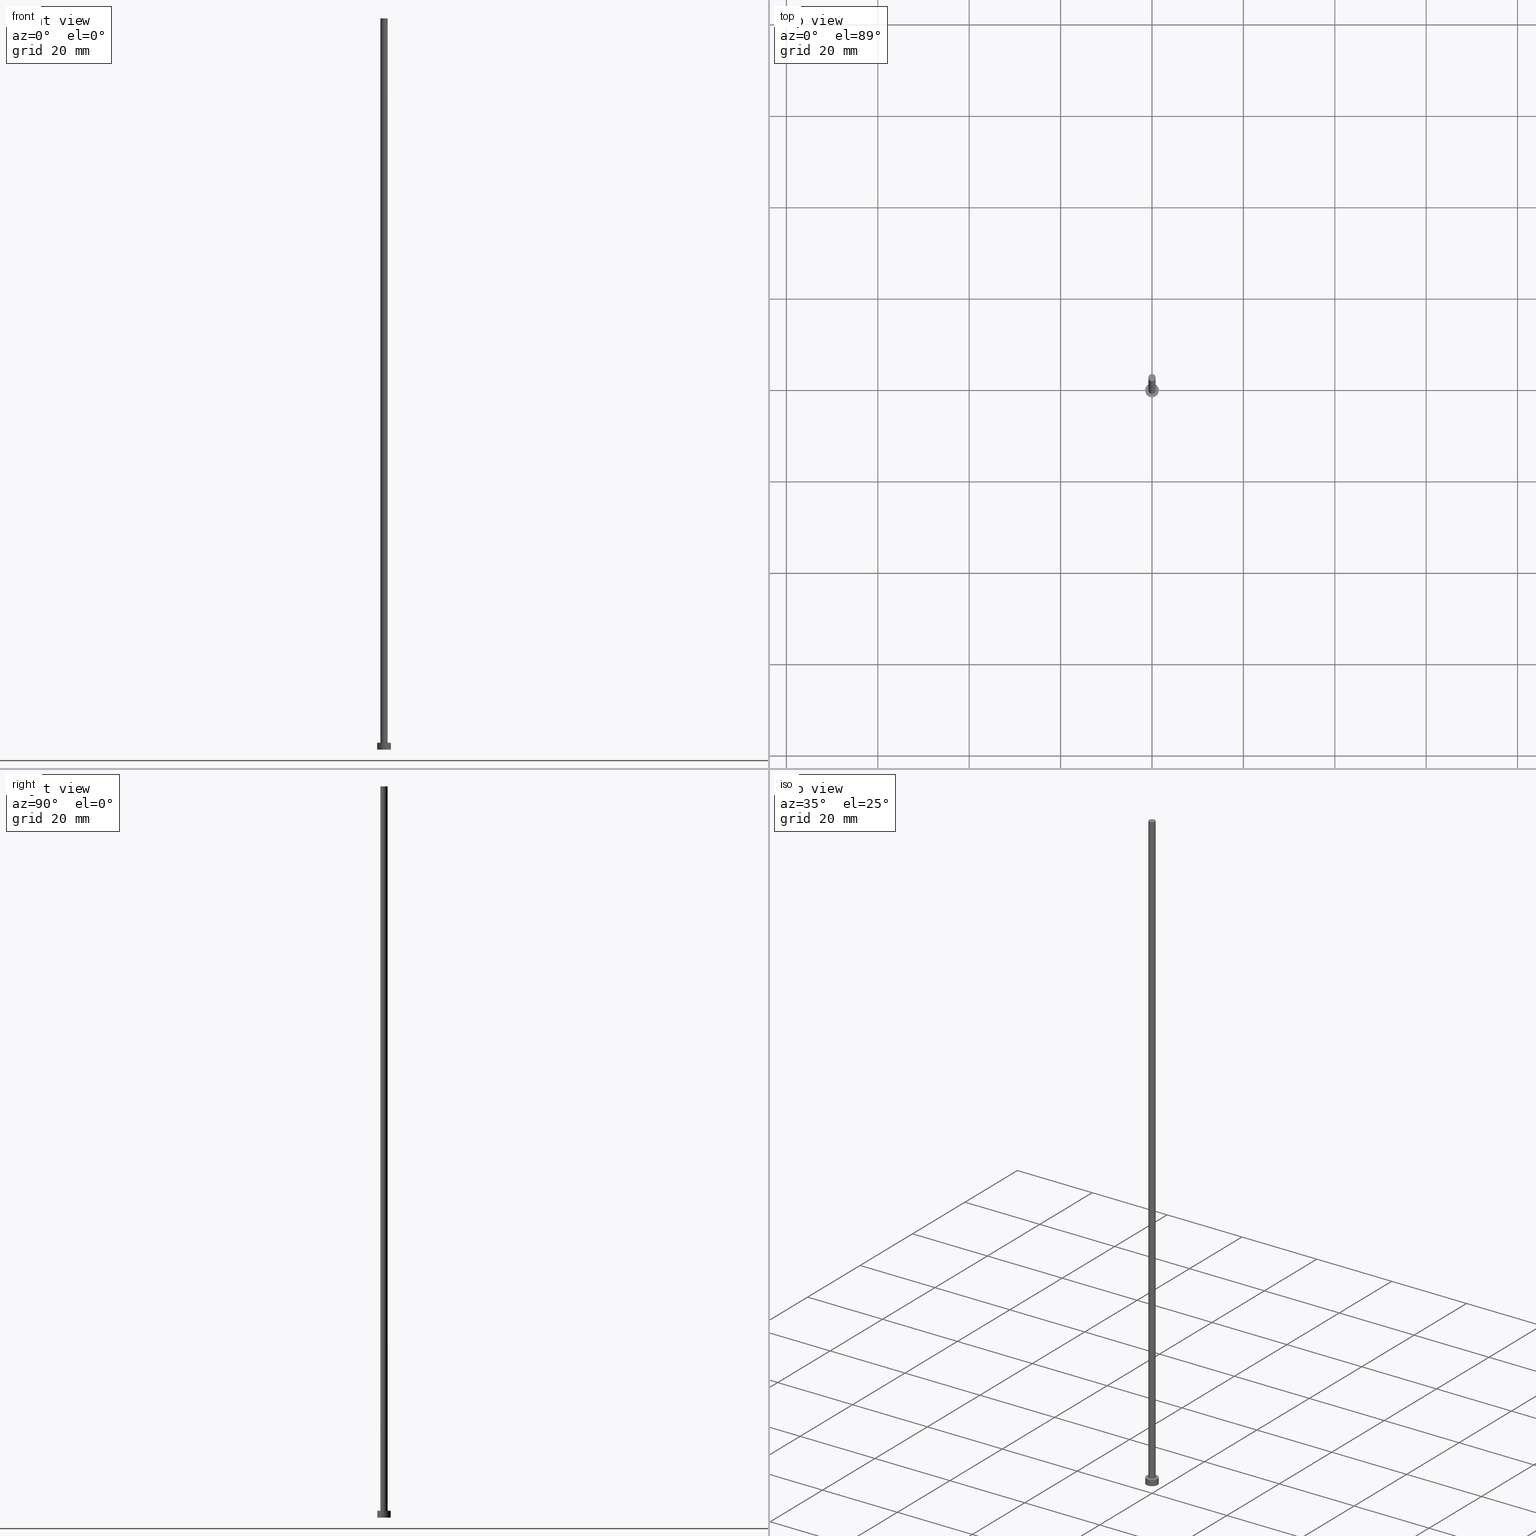
[diagram: canonical four-view strip — front | top / right | iso, engineering-drawing reading convention]
A machine part, canonical four-view strip (front | top / right | iso — engineering-drawing reading convention). The complete STEP part file that produces these views, byte-faithful:
ISO-10303-21;
HEADER;
FILE_DESCRIPTION (( 'STEP AP203' ),
    '1' );
FILE_NAME ('24e6.STEP',
    '2023-02-13T17:17:28',
    ( '' ),
    ( '' ),
    'SwSTEP 2.0',
    'SolidWorks 2019',
    '' );
FILE_SCHEMA (( 'CONFIG_CONTROL_DESIGN' ));
ENDSEC;

DATA;
#1 = CYLINDRICAL_SURFACE ( 'NONE', #44, 0.8000000000000000444 ) ;
#2 = CARTESIAN_POINT ( 'NONE',  ( 0.000000000000000000, 0.000000000000000000, 160.0000000000000000 ) ) ;
#3 = CARTESIAN_POINT ( 'NONE',  ( 0.000000000000000000, 0.000000000000000000, 160.0000000000000000 ) ) ;
#4 = LINE ( 'NONE', #62, #243 ) ;
#5 = CARTESIAN_POINT ( 'NONE',  ( -1.500000000000000222, 0.000000000000000000, 0.000000000000000000 ) ) ;
#6 = COORDINATED_UNIVERSAL_TIME_OFFSET ( 1, 0, .AHEAD. ) ;
#7 = CC_DESIGN_PERSON_AND_ORGANIZATION_ASSIGNMENT ( #240, #221, ( #216 ) ) ;
#8 = VECTOR ( 'NONE', #214, 1000.000000000000000 ) ;
#9 = COORDINATED_UNIVERSAL_TIME_OFFSET ( 1, 0, .AHEAD. ) ;
#10 = VERTEX_POINT ( 'NONE', #236 ) ;
#11 = PERSON_AND_ORGANIZATION_ROLE ( 'design_supplier' ) ;
#12 = EDGE_LOOP ( 'NONE', ( #30, #108 ) ) ;
#13 = DATE_TIME_ROLE ( 'classification_date' ) ;
#14 = EDGE_CURVE ( 'NONE', #74, #196, #222, .T. ) ;
#15 = DIRECTION ( 'NONE',  ( -0.000000000000000000, -0.000000000000000000, -1.000000000000000000 ) ) ;
#16 = CARTESIAN_POINT ( 'NONE',  ( 0.000000000000000000, 0.000000000000000000, 0.000000000000000000 ) ) ;
#17 = DIRECTION ( 'NONE',  ( -0.000000000000000000, -0.000000000000000000, -1.000000000000000000 ) ) ;
#18 = EDGE_LOOP ( 'NONE', ( #192, #255 ) ) ;
#19 = DIRECTION ( 'NONE',  ( -1.000000000000000000, 0.000000000000000000, 0.000000000000000000 ) ) ;
#20 = CC_DESIGN_PERSON_AND_ORGANIZATION_ASSIGNMENT ( #70, #11, ( #27 ) ) ;
#21 =( NAMED_UNIT ( * ) PLANE_ANGLE_UNIT ( ) SI_UNIT ( $, .RADIAN. ) );
#22 = CC_DESIGN_SECURITY_CLASSIFICATION ( #80, ( #27 ) ) ;
#23 = APPLICATION_PROTOCOL_DEFINITION ( 'international standard', 'config_control_design', 1994, #109 ) ;
#24 = CC_DESIGN_DATE_AND_TIME_ASSIGNMENT ( #53, #33, ( #94 ) ) ;
#25 = CARTESIAN_POINT ( 'NONE',  ( -0.8000000000000000444, 0.000000000000000000, 1.500000000000000000 ) ) ;
#26 = APPROVAL_STATUS ( 'not_yet_approved' ) ;
#27 = PRODUCT_DEFINITION_FORMATION_WITH_SPECIFIED_SOURCE ( 'LIBOVOLN�', '', #216, .NOT_KNOWN. ) ;
#28 = DIRECTION ( 'NONE',  ( -0.000000000000000000, -0.000000000000000000, -1.000000000000000000 ) ) ;
#29 = DATE_AND_TIME ( #55, #67 ) ;
#30 = ORIENTED_EDGE ( 'NONE', *, *, #46, .T. ) ;
#31 = COORDINATED_UNIVERSAL_TIME_OFFSET ( 1, 0, .AHEAD. ) ;
#32 = ORIENTED_EDGE ( 'NONE', *, *, #219, .F. ) ;
#33 = DATE_TIME_ROLE ( 'creation_date' ) ;
#34 = DIRECTION ( 'NONE',  ( 1.000000000000000000, 0.000000000000000000, 0.000000000000000000 ) ) ;
#35 = LINE ( 'NONE', #96, #8 ) ;
#36 = EDGE_CURVE ( 'NONE', #74, #154, #35, .T. ) ;
#37 = AXIS2_PLACEMENT_3D ( 'NONE', #121, #202, #198 ) ;
#38 = DIRECTION ( 'NONE',  ( 0.000000000000000000, 0.000000000000000000, 1.000000000000000000 ) ) ;
#39 = CIRCLE ( 'NONE', #102, 1.500000000000000222 ) ;
#40 = DIRECTION ( 'NONE',  ( 1.000000000000000000, 0.000000000000000000, -0.000000000000000000 ) ) ;
#41 = DIRECTION ( 'NONE',  ( 1.000000000000000000, 0.000000000000000000, -0.000000000000000000 ) ) ;
#42 = MANIFOLD_SOLID_BREP ( 'P�idat vysunut�m3', #171 ) ;
#43 = CARTESIAN_POINT ( 'NONE',  ( 0.8000000000000000444, 9.797174393178826150E-17, 1.500000000000000000 ) ) ;
#44 = AXIS2_PLACEMENT_3D ( 'NONE', #2, #60, #140 ) ;
#45 = DIRECTION ( 'NONE',  ( 1.000000000000000000, 0.000000000000000000, 0.000000000000000000 ) ) ;
#46 = EDGE_CURVE ( 'NONE', #56, #10, #133, .T. ) ;
#47 = DIRECTION ( 'NONE',  ( 1.000000000000000000, 0.000000000000000000, 0.000000000000000000 ) ) ;
#48 = FACE_OUTER_BOUND ( 'NONE', #18, .T. ) ;
#49 = AXIS2_PLACEMENT_3D ( 'NONE', #16, #168, #119 ) ;
#50 = CC_DESIGN_APPROVAL ( #54, ( #27 ) ) ;
#51 = COORDINATED_UNIVERSAL_TIME_OFFSET ( 1, 0, .AHEAD. ) ;
#52 = ORIENTED_EDGE ( 'NONE', *, *, #254, .T. ) ;
#53 = DATE_AND_TIME ( #72, #141 ) ;
#54 = APPROVAL ( #233, 'NEUR�EN�' ) ;
#55 = CALENDAR_DATE ( 2023, 13, 2 ) ;
#56 = VERTEX_POINT ( 'NONE', #136 ) ;
#57 = DIRECTION ( 'NONE',  ( 1.000000000000000000, 0.000000000000000000, -0.000000000000000000 ) ) ;
#58 = FACE_OUTER_BOUND ( 'NONE', #71, .T. ) ;
#59 = CC_DESIGN_DATE_AND_TIME_ASSIGNMENT ( #132, #13, ( #80 ) ) ;
#60 = DIRECTION ( 'NONE',  ( -0.000000000000000000, -0.000000000000000000, -1.000000000000000000 ) ) ;
#61 = LOCAL_TIME ( 18, 17, 28.00000000000000000, #31 ) ;
#62 = CARTESIAN_POINT ( 'NONE',  ( -1.500000000000000222, 0.000000000000000000, 1.500000000000000000 ) ) ;
#63 = CARTESIAN_POINT ( 'NONE',  ( 0.000000000000000000, 0.000000000000000000, 1.500000000000000000 ) ) ;
#64 = ORGANIZATION ( 'NEUR�EN�', 'NEUR�EN�', '' ) ;
#65 = CALENDAR_DATE ( 2023, 13, 2 ) ;
#66 = CIRCLE ( 'NONE', #100, 0.8000000000000000444 ) ;
#67 = LOCAL_TIME ( 18, 17, 28.00000000000000000, #51 ) ;
#68 = ORIENTED_EDGE ( 'NONE', *, *, #219, .T. ) ;
#69 = PERSON_AND_ORGANIZATION ( #212, #64 ) ;
#70 = PERSON_AND_ORGANIZATION ( #212, #64 ) ;
#71 = EDGE_LOOP ( 'NONE', ( #113, #178, #52, #87 ) ) ;
#72 = CALENDAR_DATE ( 2023, 13, 2 ) ;
#73 = LOCAL_TIME ( 18, 17, 28.00000000000000000, #6 ) ;
#74 = VERTEX_POINT ( 'NONE', #97 ) ;
#75 = CARTESIAN_POINT ( 'NONE',  ( 0.000000000000000000, 0.000000000000000000, 160.0000000000000000 ) ) ;
#76 = FACE_OUTER_BOUND ( 'NONE', #165, .T. ) ;
#77 = CARTESIAN_POINT ( 'NONE',  ( 0.000000000000000000, 0.000000000000000000, 1.500000000000000000 ) ) ;
#78 = FACE_OUTER_BOUND ( 'NONE', #164, .T. ) ;
#79 = FACE_OUTER_BOUND ( 'NONE', #12, .T. ) ;
#80 = SECURITY_CLASSIFICATION ( '', '', #114 ) ;
#81 = UNCERTAINTY_MEASURE_WITH_UNIT (LENGTH_MEASURE( 1.000000000000000082E-05 ), #174, 'distance_accuracy_value', 'NONE');
#82 = APPROVAL ( #225, 'NEUR�EN�' ) ;
#83 = DIRECTION ( 'NONE',  ( 1.000000000000000000, 0.000000000000000000, 0.000000000000000000 ) ) ;
#84 = DIRECTION ( 'NONE',  ( 0.000000000000000000, 0.000000000000000000, 1.000000000000000000 ) ) ;
#85 = EDGE_LOOP ( 'NONE', ( #156, #208, #131, #95 ) ) ;
#86 = PERSON_AND_ORGANIZATION_ROLE ( 'creator' ) ;
#87 = ORIENTED_EDGE ( 'NONE', *, *, #200, .F. ) ;
#88 = ADVANCED_FACE ( 'NONE', ( #76 ), #1, .T. ) ;
#89 = CALENDAR_DATE ( 2023, 13, 2 ) ;
#90 = ORIENTED_EDGE ( 'NONE', *, *, #237, .F. ) ;
#91 = ADVANCED_FACE ( 'NONE', ( #210, #79 ), #120, .T. ) ;
#92 = VECTOR ( 'NONE', #217, 1000.000000000000000 ) ;
#93 = FACE_OUTER_BOUND ( 'NONE', #158, .T. ) ;
#94 = PRODUCT_DEFINITION ( 'NEZN�M�', '', #27, #239 ) ;
#95 = ORIENTED_EDGE ( 'NONE', *, *, #125, .T. ) ;
#96 = CARTESIAN_POINT ( 'NONE',  ( -0.8000000000000000444, 0.000000000000000000, 160.0000000000000000 ) ) ;
#97 = CARTESIAN_POINT ( 'NONE',  ( -0.8000000000000000444, 0.000000000000000000, 160.0000000000000000 ) ) ;
#98 = FACE_OUTER_BOUND ( 'NONE', #85, .T. ) ;
#99 = CC_DESIGN_PERSON_AND_ORGANIZATION_ASSIGNMENT ( #175, #86, ( #94 ) ) ;
#100 = AXIS2_PLACEMENT_3D ( 'NONE', #63, #143, #103 ) ;
#101 = CARTESIAN_POINT ( 'NONE',  ( 0.000000000000000000, 0.000000000000000000, 0.000000000000000000 ) ) ;
#102 = AXIS2_PLACEMENT_3D ( 'NONE', #101, #191, #83 ) ;
#103 = DIRECTION ( 'NONE',  ( 1.000000000000000000, 0.000000000000000000, 0.000000000000000000 ) ) ;
#104 = ADVANCED_FACE ( 'NONE', ( #58 ), #182, .T. ) ;
#105 = APPROVAL_ROLE ( '' ) ;
#106 = AXIS2_PLACEMENT_3D ( 'NONE', #77, #203, #137 ) ;
#107 = DIRECTION ( 'NONE',  ( 1.000000000000000000, 0.000000000000000000, 0.000000000000000000 ) ) ;
#108 = ORIENTED_EDGE ( 'NONE', *, *, #150, .T. ) ;
#109 = APPLICATION_CONTEXT ( 'configuration controlled 3d designs of mechanical parts and assemblies' ) ;
#110 = COORDINATED_UNIVERSAL_TIME_OFFSET ( 1, 0, .AHEAD. ) ;
#111 = VERTEX_POINT ( 'NONE', #213 ) ;
#112 = AXIS2_PLACEMENT_3D ( 'NONE', #126, #187, #41 ) ;
#113 = ORIENTED_EDGE ( 'NONE', *, *, #150, .F. ) ;
#114 = SECURITY_CLASSIFICATION_LEVEL ( 'unclassified' ) ;
#115 = ORIENTED_EDGE ( 'NONE', *, *, #160, .F. ) ;
#116 = CARTESIAN_POINT ( 'NONE',  ( 0.000000000000000000, 0.000000000000000000, 1.500000000000000000 ) ) ;
#117 = ORIENTED_EDGE ( 'NONE', *, *, #139, .T. ) ;
#118 = APPROVAL ( #26, 'NEUR�EN�' ) ;
#119 = DIRECTION ( 'NONE',  ( 1.000000000000000000, 0.000000000000000000, 0.000000000000000000 ) ) ;
#120 = PLANE ( 'NONE',  #224 ) ;
#121 = CARTESIAN_POINT ( 'NONE',  ( 0.000000000000000000, 0.000000000000000000, 1.500000000000000000 ) ) ;
#122 = CARTESIAN_POINT ( 'NONE',  ( 0.8000000000000000444, 9.797174393178826150E-17, 160.0000000000000000 ) ) ;
#123 = ADVANCED_BREP_SHAPE_REPRESENTATION ( '24e6', ( #42, #146 ), #253 ) ;
#124 = DIRECTION ( 'NONE',  ( 0.000000000000000000, 0.000000000000000000, 1.000000000000000000 ) ) ;
#125 = EDGE_CURVE ( 'NONE', #228, #111, #159, .T. ) ;
#126 = CARTESIAN_POINT ( 'NONE',  ( 0.000000000000000000, 0.000000000000000000, 0.000000000000000000 ) ) ;
#127 = PERSON_AND_ORGANIZATION ( #212, #64 ) ;
#128 = AXIS2_PLACEMENT_3D ( 'NONE', #252, #138, #34 ) ;
#129 = DIRECTION ( 'NONE',  ( 0.000000000000000000, 0.000000000000000000, 1.000000000000000000 ) ) ;
#130 = DATE_AND_TIME ( #65, #61 ) ;
#131 = ORIENTED_EDGE ( 'NONE', *, *, #200, .T. ) ;
#132 = DATE_AND_TIME ( #89, #226 ) ;
#133 = CIRCLE ( 'NONE', #181, 1.500000000000000222 ) ;
#134 = CARTESIAN_POINT ( 'NONE',  ( 0.000000000000000000, 0.000000000000000000, 1.500000000000000000 ) ) ;
#135 = CC_DESIGN_APPROVAL ( #82, ( #80 ) ) ;
#136 = CARTESIAN_POINT ( 'NONE',  ( -1.500000000000000222, 0.000000000000000000, 1.500000000000000000 ) ) ;
#137 = DIRECTION ( 'NONE',  ( -1.000000000000000000, 0.000000000000000000, 0.000000000000000000 ) ) ;
#138 = DIRECTION ( 'NONE',  ( 0.000000000000000000, 0.000000000000000000, 1.000000000000000000 ) ) ;
#139 = EDGE_CURVE ( 'NONE', #179, #154, #209, .T. ) ;
#140 = DIRECTION ( 'NONE',  ( -1.000000000000000000, 0.000000000000000000, 0.000000000000000000 ) ) ;
#141 = LOCAL_TIME ( 18, 17, 28.00000000000000000, #110 ) ;
#142 = ADVANCED_FACE ( 'NONE', ( #78 ), #211, .T. ) ;
#143 = DIRECTION ( 'NONE',  ( 0.000000000000000000, 0.000000000000000000, 1.000000000000000000 ) ) ;
#144 = DIRECTION ( 'NONE',  ( -0.000000000000000000, -0.000000000000000000, -1.000000000000000000 ) ) ;
#145 = PLANE ( 'NONE',  #112 ) ;
#146 = AXIS2_PLACEMENT_3D ( 'NONE', #218, #124, #47 ) ;
#147 = CC_DESIGN_PERSON_AND_ORGANIZATION_ASSIGNMENT ( #195, #151, ( #80 ) ) ;
#148 = ADVANCED_FACE ( 'NONE', ( #98 ), #238, .T. ) ;
#149 = ADVANCED_FACE ( 'NONE', ( #93 ), #180, .T. ) ;
#150 = EDGE_CURVE ( 'NONE', #10, #56, #215, .T. ) ;
#151 = PERSON_AND_ORGANIZATION_ROLE ( 'classification_officer' ) ;
#152 = VECTOR ( 'NONE', #144, 1000.000000000000000 ) ;
#153 = EDGE_CURVE ( 'NONE', #10, #111, #220, .T. ) ;
#154 = VERTEX_POINT ( 'NONE', #25 ) ;
#155 = SHAPE_DEFINITION_REPRESENTATION ( #229, #123 ) ;
#156 = ORIENTED_EDGE ( 'NONE', *, *, #153, .F. ) ;
#157 = PERSON_AND_ORGANIZATION ( #212, #64 ) ;
#158 = EDGE_LOOP ( 'NONE', ( #251, #68 ) ) ;
#159 = CIRCLE ( 'NONE', #49, 1.500000000000000222 ) ;
#160 = EDGE_CURVE ( 'NONE', #154, #179, #66, .T. ) ;
#161 = CC_DESIGN_PERSON_AND_ORGANIZATION_ASSIGNMENT ( #247, #246, ( #27 ) ) ;
#162 = CIRCLE ( 'NONE', #169, 0.8000000000000000444 ) ;
#163 = APPROVAL_DATE_TIME ( #130, #54 ) ;
#164 = EDGE_LOOP ( 'NONE', ( #32, #194, #117, #230 ) ) ;
#165 = EDGE_LOOP ( 'NONE', ( #90, #176, #248, #232 ) ) ;
#166 = DIRECTION ( 'NONE',  ( 0.000000000000000000, 0.000000000000000000, 1.000000000000000000 ) ) ;
#167 = DIRECTION ( 'NONE',  ( 1.000000000000000000, 0.000000000000000000, 0.000000000000000000 ) ) ;
#168 = DIRECTION ( 'NONE',  ( 0.000000000000000000, 0.000000000000000000, 1.000000000000000000 ) ) ;
#169 = AXIS2_PLACEMENT_3D ( 'NONE', #3, #84, #45 ) ;
#170 =( NAMED_UNIT ( * ) SI_UNIT ( $, .STERADIAN. ) SOLID_ANGLE_UNIT ( ) );
#171 = CLOSED_SHELL ( 'NONE', ( #142, #104, #148, #91, #201, #88, #149 ) ) ;
#172 = AXIS2_PLACEMENT_3D ( 'NONE', #134, #15, #199 ) ;
#173 = CALENDAR_DATE ( 2023, 13, 2 ) ;
#174 =( LENGTH_UNIT ( ) NAMED_UNIT ( * ) SI_UNIT ( .MILLI., .METRE. ) );
#175 = PERSON_AND_ORGANIZATION ( #212, #64 ) ;
#176 = ORIENTED_EDGE ( 'NONE', *, *, #14, .F. ) ;
#177 = APPROVAL_ROLE ( '' ) ;
#178 = ORIENTED_EDGE ( 'NONE', *, *, #153, .T. ) ;
#179 = VERTEX_POINT ( 'NONE', #43 ) ;
#180 = PLANE ( 'NONE',  #188 ) ;
#181 = AXIS2_PLACEMENT_3D ( 'NONE', #116, #38, #167 ) ;
#182 = CYLINDRICAL_SURFACE ( 'NONE', #106, 1.500000000000000222 ) ;
#183 = AXIS2_PLACEMENT_3D ( 'NONE', #204, #17, #19 ) ;
#184 = CARTESIAN_POINT ( 'NONE',  ( 0.000000000000000000, 0.000000000000000000, 1.500000000000000000 ) ) ;
#185 = APPROVAL_PERSON_ORGANIZATION ( #69, #82, #227 ) ;
#186 = MECHANICAL_CONTEXT ( 'NONE', #109, 'mechanical' ) ;
#187 = DIRECTION ( 'NONE',  ( 0.000000000000000000, 0.000000000000000000, 1.000000000000000000 ) ) ;
#188 = AXIS2_PLACEMENT_3D ( 'NONE', #75, #234, #57 ) ;
#189 = CARTESIAN_POINT ( 'NONE',  ( 0.8000000000000000444, 9.797174393178826150E-17, 160.0000000000000000 ) ) ;
#190 = APPROVAL_PERSON_ORGANIZATION ( #127, #118, #105 ) ;
#191 = DIRECTION ( 'NONE',  ( 0.000000000000000000, 0.000000000000000000, 1.000000000000000000 ) ) ;
#192 = ORIENTED_EDGE ( 'NONE', *, *, #125, .F. ) ;
#193 = APPROVAL_DATE_TIME ( #29, #82 ) ;
#194 = ORIENTED_EDGE ( 'NONE', *, *, #237, .T. ) ;
#195 = PERSON_AND_ORGANIZATION ( #212, #64 ) ;
#196 = VERTEX_POINT ( 'NONE', #122 ) ;
#197 = PRODUCT_RELATED_PRODUCT_CATEGORY ( 'detail', '', ( #216 ) ) ;
#198 = DIRECTION ( 'NONE',  ( 1.000000000000000000, 0.000000000000000000, 0.000000000000000000 ) ) ;
#199 = DIRECTION ( 'NONE',  ( -1.000000000000000000, 0.000000000000000000, 0.000000000000000000 ) ) ;
#200 = EDGE_CURVE ( 'NONE', #56, #228, #4, .T. ) ;
#201 = ADVANCED_FACE ( 'NONE', ( #48 ), #145, .F. ) ;
#202 = DIRECTION ( 'NONE',  ( 0.000000000000000000, 0.000000000000000000, 1.000000000000000000 ) ) ;
#203 = DIRECTION ( 'NONE',  ( -0.000000000000000000, -0.000000000000000000, -1.000000000000000000 ) ) ;
#204 = CARTESIAN_POINT ( 'NONE',  ( 0.000000000000000000, 0.000000000000000000, 160.0000000000000000 ) ) ;
#205 = CARTESIAN_POINT ( 'NONE',  ( 1.500000000000000222, 1.836970198721030181E-16, 1.500000000000000000 ) ) ;
#206 = LINE ( 'NONE', #189, #152 ) ;
#207 = ORIENTED_EDGE ( 'NONE', *, *, #139, .F. ) ;
#208 = ORIENTED_EDGE ( 'NONE', *, *, #46, .F. ) ;
#209 = CIRCLE ( 'NONE', #37, 0.8000000000000000444 ) ;
#210 = FACE_BOUND ( 'NONE', #250, .T. ) ;
#211 = CYLINDRICAL_SURFACE ( 'NONE', #183, 0.8000000000000000444 ) ;
#212 = PERSON ( 'NEUR�EN�', 'NEUR�EN�', 'NEUR�EN�', ('NEUR�EN�'), ('NEUR�EN�'), ('NEUR�EN�') ) ;
#213 = CARTESIAN_POINT ( 'NONE',  ( 1.500000000000000222, 1.836970198721030181E-16, 0.000000000000000000 ) ) ;
#214 = DIRECTION ( 'NONE',  ( -0.000000000000000000, -0.000000000000000000, -1.000000000000000000 ) ) ;
#215 = CIRCLE ( 'NONE', #241, 1.500000000000000222 ) ;
#216 = PRODUCT ( '24e6', '24e6', '', ( #186 ) ) ;
#217 = DIRECTION ( 'NONE',  ( -0.000000000000000000, -0.000000000000000000, -1.000000000000000000 ) ) ;
#218 = CARTESIAN_POINT ( 'NONE',  ( 0.000000000000000000, 0.000000000000000000, 0.000000000000000000 ) ) ;
#219 = EDGE_CURVE ( 'NONE', #196, #74, #162, .T. ) ;
#220 = LINE ( 'NONE', #205, #92 ) ;
#221 = PERSON_AND_ORGANIZATION_ROLE ( 'design_owner' ) ;
#222 = CIRCLE ( 'NONE', #128, 0.8000000000000000444 ) ;
#223 = DATE_AND_TIME ( #173, #73 ) ;
#224 = AXIS2_PLACEMENT_3D ( 'NONE', #235, #166, #40 ) ;
#225 = APPROVAL_STATUS ( 'not_yet_approved' ) ;
#226 = LOCAL_TIME ( 18, 17, 28.00000000000000000, #9 ) ;
#227 = APPROVAL_ROLE ( '' ) ;
#228 = VERTEX_POINT ( 'NONE', #5 ) ;
#229 = PRODUCT_DEFINITION_SHAPE ( 'NONE', 'NONE',  #94 ) ;
#230 = ORIENTED_EDGE ( 'NONE', *, *, #36, .F. ) ;
#231 = APPROVAL_DATE_TIME ( #223, #118 ) ;
#232 = ORIENTED_EDGE ( 'NONE', *, *, #160, .T. ) ;
#233 = APPROVAL_STATUS ( 'not_yet_approved' ) ;
#234 = DIRECTION ( 'NONE',  ( 0.000000000000000000, 0.000000000000000000, 1.000000000000000000 ) ) ;
#235 = CARTESIAN_POINT ( 'NONE',  ( 0.000000000000000000, 0.000000000000000000, 1.500000000000000000 ) ) ;
#236 = CARTESIAN_POINT ( 'NONE',  ( 1.500000000000000222, 1.836970198721030181E-16, 1.500000000000000000 ) ) ;
#237 = EDGE_CURVE ( 'NONE', #196, #179, #206, .T. ) ;
#238 = CYLINDRICAL_SURFACE ( 'NONE', #172, 1.500000000000000222 ) ;
#239 = DESIGN_CONTEXT ( 'detailed design', #244, 'design' ) ;
#240 = PERSON_AND_ORGANIZATION ( #212, #64 ) ;
#241 = AXIS2_PLACEMENT_3D ( 'NONE', #184, #129, #107 ) ;
#242 = APPLICATION_PROTOCOL_DEFINITION ( 'international standard', 'config_control_design', 1994, #244 ) ;
#243 = VECTOR ( 'NONE', #28, 1000.000000000000000 ) ;
#244 = APPLICATION_CONTEXT ( 'configuration controlled 3d designs of mechanical parts and assemblies' ) ;
#245 = APPROVAL_PERSON_ORGANIZATION ( #157, #54, #177 ) ;
#246 = PERSON_AND_ORGANIZATION_ROLE ( 'creator' ) ;
#247 = PERSON_AND_ORGANIZATION ( #212, #64 ) ;
#248 = ORIENTED_EDGE ( 'NONE', *, *, #36, .T. ) ;
#249 = CC_DESIGN_APPROVAL ( #118, ( #94 ) ) ;
#250 = EDGE_LOOP ( 'NONE', ( #115, #207 ) ) ;
#251 = ORIENTED_EDGE ( 'NONE', *, *, #14, .T. ) ;
#252 = CARTESIAN_POINT ( 'NONE',  ( 0.000000000000000000, 0.000000000000000000, 160.0000000000000000 ) ) ;
#253 =( GEOMETRIC_REPRESENTATION_CONTEXT ( 3 ) GLOBAL_UNCERTAINTY_ASSIGNED_CONTEXT ( ( #81 ) ) GLOBAL_UNIT_ASSIGNED_CONTEXT ( ( #174, #21, #170 ) ) REPRESENTATION_CONTEXT ( 'NONE', 'WORKASPACE' ) );
#254 = EDGE_CURVE ( 'NONE', #111, #228, #39, .T. ) ;
#255 = ORIENTED_EDGE ( 'NONE', *, *, #254, .F. ) ;
ENDSEC;
END-ISO-10303-21;
